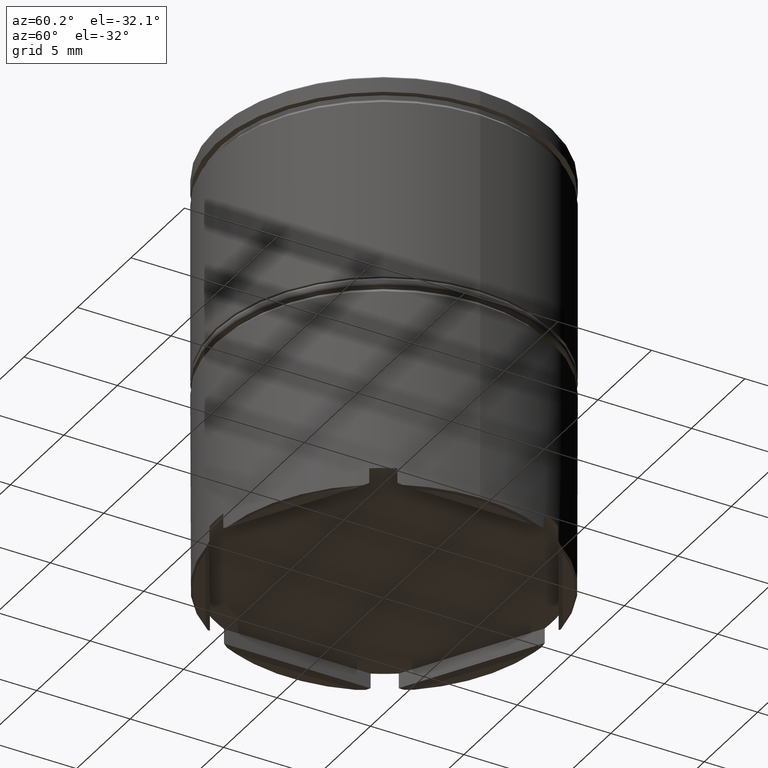
[diagram: clean part render]
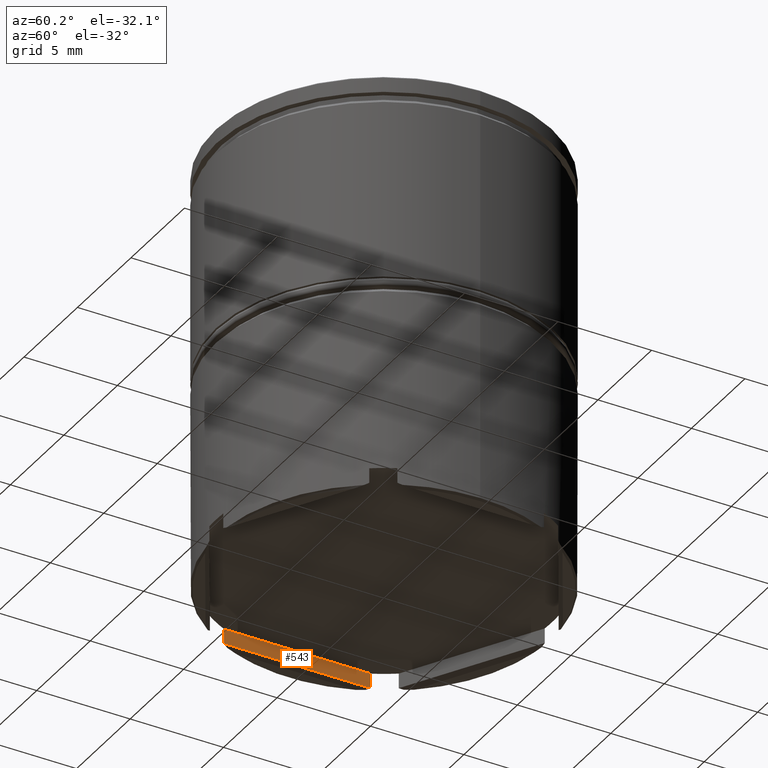
[diagram: same view with one face highlighted and labeled with its STEP entity id]
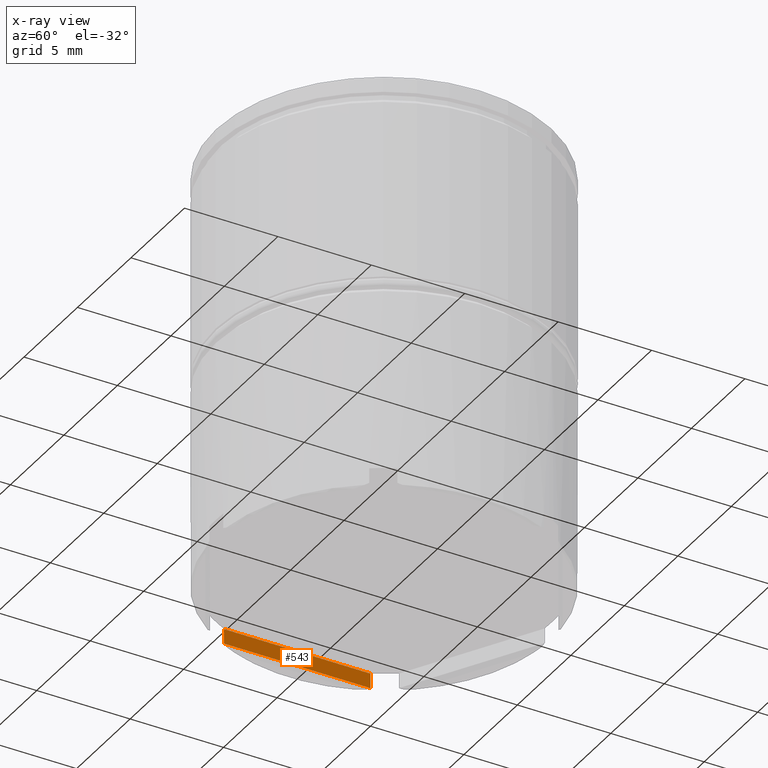
[diagram: x-ray of the same camera — body ghosted, the highlighted face saturated]
A machine part, auxiliary view. The second image highlights one B-rep face of the part: STEP entity #543.
The next image is the same camera in x-ray: the body ghosted, the highlighted face saturated — about 0% of this face is hidden behind the body in this view.
In plain terms, the highlighted planar face has unit normal (-1, 0, 0).
Its self-contained STEP definition (entity closure, byte-faithful):
#20 = EDGE_CURVE ( 'NONE', #117, #1576, #1442, .T. ) ;
#56 = CARTESIAN_POINT ( 'NONE',  ( -8.100000000000003197, 3.923009049186599206, -22.29999999999999716 ) ) ;
#64 = CARTESIAN_POINT ( 'NONE',  ( -8.100000000000003197, -3.923009049186599206, -22.29999999999999716 ) ) ;
#76 = PLANE ( 'NONE',  #1059 ) ;
#91 = CARTESIAN_POINT ( 'NONE',  ( -8.100000000000003197, -3.923009049186599206, -21.50000000000000000 ) ) ;
#117 = VERTEX_POINT ( 'NONE', #56 ) ;
#152 = CARTESIAN_POINT ( 'NONE',  ( -8.100000000000003197, -4.676537180435969887, -21.50000000000000000 ) ) ;
#171 = CARTESIAN_POINT ( 'NONE',  ( -8.100000000000003197, 3.923009049186599206, 0.000000000000000000 ) ) ;
#222 = CARTESIAN_POINT ( 'NONE',  ( -8.100000000000003197, -3.923009049186599206, 0.000000000000000000 ) ) ;
#340 = VECTOR ( 'NONE', #1242, 1000.000000000000000 ) ;
#443 = LINE ( 'NONE', #222, #1100 ) ;
#446 = CARTESIAN_POINT ( 'NONE',  ( -8.100000000000003197, -4.676537180435969887, -21.50000000000000000 ) ) ;
#522 = ORIENTED_EDGE ( 'NONE', *, *, #20, .T. ) ;
#543 = ADVANCED_FACE ( 'NONE', ( #1324 ), #76, .F. ) ;
#569 = DIRECTION ( 'NONE',  ( 0.000000000000000000, 0.000000000000000000, 1.000000000000000000 ) ) ;
#782 = DIRECTION ( 'NONE',  ( 0.000000000000000000, 1.000000000000000000, 0.000000000000000000 ) ) ;
#842 = CARTESIAN_POINT ( 'NONE',  ( -8.100000000000003197, 3.923009049186599206, -21.50000000000000000 ) ) ;
#869 = LINE ( 'NONE', #1126, #340 ) ;
#1030 = VECTOR ( 'NONE', #1453, 1000.000000000000000 ) ;
#1059 = AXIS2_PLACEMENT_3D ( 'NONE', #446, #1337, #569 ) ;
#1100 = VECTOR ( 'NONE', #1221, 1000.000000000000000 ) ;
#1126 = CARTESIAN_POINT ( 'NONE',  ( -8.100000000000003197, 3.687817782917153675, -22.29999999999999716 ) ) ;
#1136 = EDGE_CURVE ( 'NONE', #1393, #117, #869, .T. ) ;
#1159 = EDGE_LOOP ( 'NONE', ( #1463, #1342, #522, #1403 ) ) ;
#1221 = DIRECTION ( 'NONE',  ( 0.000000000000000000, 0.000000000000000000, -1.000000000000000000 ) ) ;
#1242 = DIRECTION ( 'NONE',  ( 0.000000000000000000, 1.000000000000000000, 0.000000000000000000 ) ) ;
#1281 = LINE ( 'NONE', #152, #1573 ) ;
#1313 = EDGE_CURVE ( 'NONE', #1445, #1576, #1281, .T. ) ;
#1324 = FACE_OUTER_BOUND ( 'NONE', #1159, .T. ) ;
#1337 = DIRECTION ( 'NONE',  ( -1.000000000000000000, 0.000000000000000000, 0.000000000000000000 ) ) ;
#1342 = ORIENTED_EDGE ( 'NONE', *, *, #1136, .T. ) ;
#1393 = VERTEX_POINT ( 'NONE', #64 ) ;
#1403 = ORIENTED_EDGE ( 'NONE', *, *, #1313, .F. ) ;
#1442 = LINE ( 'NONE', #171, #1030 ) ;
#1445 = VERTEX_POINT ( 'NONE', #91 ) ;
#1453 = DIRECTION ( 'NONE',  ( -0.000000000000000000, -0.000000000000000000, 1.000000000000000000 ) ) ;
#1463 = ORIENTED_EDGE ( 'NONE', *, *, #1530, .T. ) ;
#1530 = EDGE_CURVE ( 'NONE', #1445, #1393, #443, .T. ) ;
#1573 = VECTOR ( 'NONE', #782, 1000.000000000000000 ) ;
#1576 = VERTEX_POINT ( 'NONE', #842 ) ;